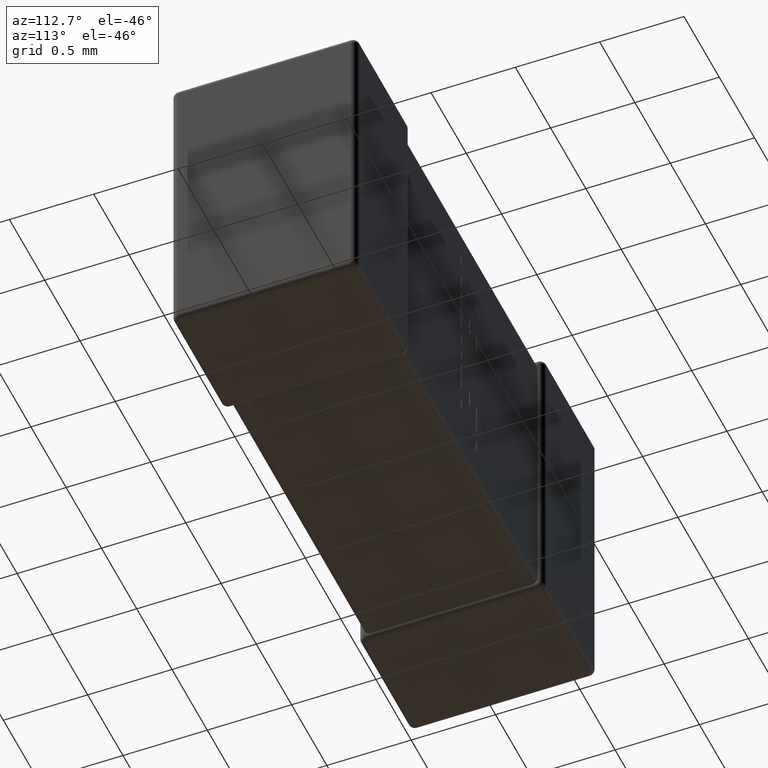
[diagram: clean part render]
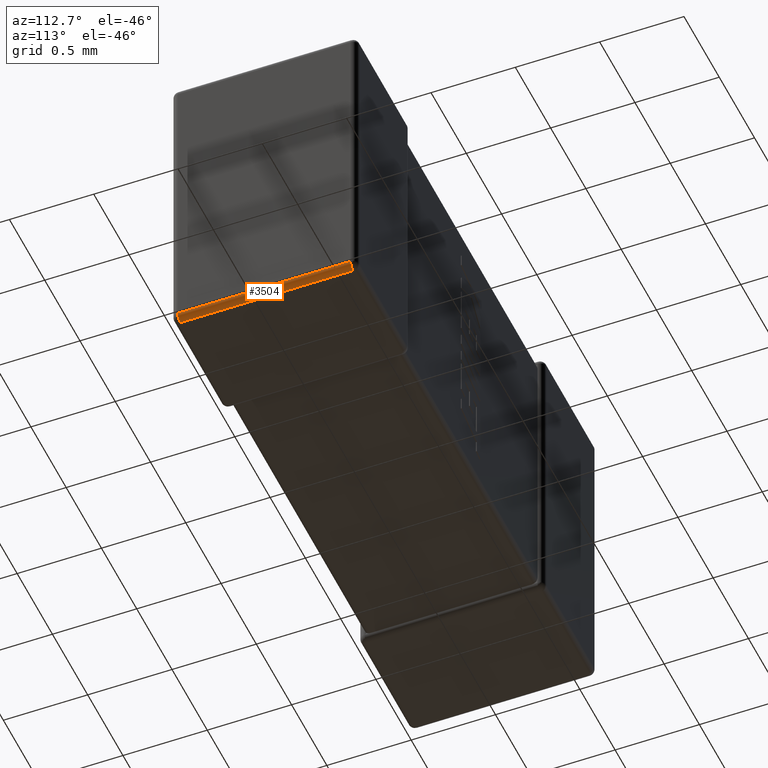
[diagram: same view with one face highlighted and labeled with its STEP entity id]
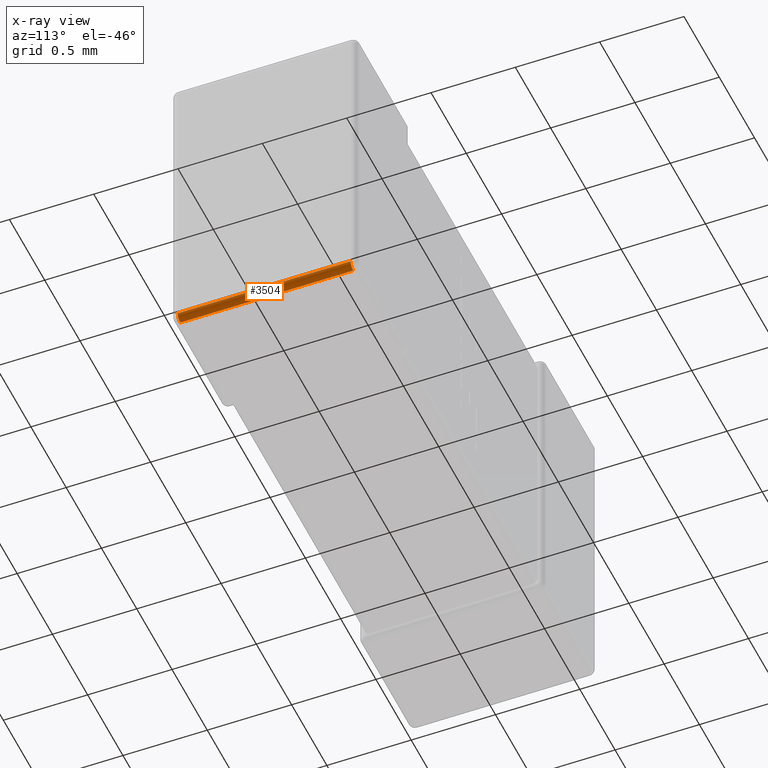
[diagram: x-ray of the same camera — body ghosted, the highlighted face saturated]
A machine part, auxiliary view. The second image highlights one B-rep face of the part: STEP entity #3504.
The next image is the same camera in x-ray: the body ghosted, the highlighted face saturated — about 0% of this face is hidden behind the body in this view.
In plain terms, the highlighted cylindrical surface (edge-blend (fillet) strip) has radius 0.0374 mm, axis along (0, 1, -0).
Its self-contained STEP definition (entity closure, byte-faithful):
#41 = CIRCLE ( 'NONE', #3585, 0.03743999999999991085 ) ;
#455 = EDGE_CURVE ( 'NONE', #1603, #722, #1959, .T. ) ;
#588 = EDGE_CURVE ( 'NONE', #1816, #722, #4529, .T. ) ;
#705 = DIRECTION ( 'NONE',  ( 0.000000000000000000, -1.000000000000000000, 0.000000000000000000 ) ) ;
#722 = VERTEX_POINT ( 'NONE', #1211 ) ;
#793 = FACE_OUTER_BOUND ( 'NONE', #3779, .T. ) ;
#844 = VECTOR ( 'NONE', #4337, 1000.000000000000000 ) ;
#909 = VECTOR ( 'NONE', #3346, 1000.000000000000000 ) ;
#1009 = EDGE_CURVE ( 'NONE', #1816, #1533, #2437, .T. ) ;
#1121 = CARTESIAN_POINT ( 'NONE',  ( 3.400000000000000355, 0.03744000000000000106, -1.762560000000000127 ) ) ;
#1140 = DIRECTION ( 'NONE',  ( 0.000000000000000000, 0.000000000000000000, -1.000000000000000000 ) ) ;
#1211 = CARTESIAN_POINT ( 'NONE',  ( 3.400000000000000355, 1.062560000000000171, -1.762560000000000127 ) ) ;
#1289 = AXIS2_PLACEMENT_3D ( 'NONE', #2907, #1508, #4394 ) ;
#1422 = CARTESIAN_POINT ( 'NONE',  ( 3.362560000000000215, 0.03744000000000000106, -1.762560000000000127 ) ) ;
#1508 = DIRECTION ( 'NONE',  ( 0.000000000000000000, 1.000000000000000000, -0.000000000000000000 ) ) ;
#1533 = VERTEX_POINT ( 'NONE', #3631 ) ;
#1540 = CARTESIAN_POINT ( 'NONE',  ( 3.400000000000000355, 0.000000000000000000, -1.762560000000000127 ) ) ;
#1541 = ORIENTED_EDGE ( 'NONE', *, *, #1009, .F. ) ;
#1577 = EDGE_CURVE ( 'NONE', #1533, #1603, #41, .T. ) ;
#1603 = VERTEX_POINT ( 'NONE', #1121 ) ;
#1682 = ORIENTED_EDGE ( 'NONE', *, *, #1577, .F. ) ;
#1756 = CARTESIAN_POINT ( 'NONE',  ( 3.362560000000000215, 0.000000000000000000, -1.800000000000000044 ) ) ;
#1816 = VERTEX_POINT ( 'NONE', #4101 ) ;
#1868 = ORIENTED_EDGE ( 'NONE', *, *, #455, .F. ) ;
#1959 = LINE ( 'NONE', #1540, #909 ) ;
#2372 = ORIENTED_EDGE ( 'NONE', *, *, #588, .T. ) ;
#2437 = LINE ( 'NONE', #1756, #844 ) ;
#2482 = AXIS2_PLACEMENT_3D ( 'NONE', #2763, #4534, #4577 ) ;
#2627 = CYLINDRICAL_SURFACE ( 'NONE', #1289, 0.03743999999999991085 ) ;
#2763 = CARTESIAN_POINT ( 'NONE',  ( 3.362560000000000215, 1.062560000000000171, -1.762560000000000127 ) ) ;
#2907 = CARTESIAN_POINT ( 'NONE',  ( 3.362560000000000215, 0.000000000000000000, -1.762560000000000127 ) ) ;
#3346 = DIRECTION ( 'NONE',  ( 0.000000000000000000, 1.000000000000000000, -0.000000000000000000 ) ) ;
#3504 = ADVANCED_FACE ( 'NONE', ( #793 ), #2627, .T. ) ;
#3585 = AXIS2_PLACEMENT_3D ( 'NONE', #1422, #705, #1140 ) ;
#3631 = CARTESIAN_POINT ( 'NONE',  ( 3.362560000000000215, 0.03744000000000000106, -1.800000000000000044 ) ) ;
#3779 = EDGE_LOOP ( 'NONE', ( #2372, #1868, #1682, #1541 ) ) ;
#4101 = CARTESIAN_POINT ( 'NONE',  ( 3.362560000000000215, 1.062560000000000171, -1.800000000000000044 ) ) ;
#4337 = DIRECTION ( 'NONE',  ( -0.000000000000000000, -1.000000000000000000, 0.000000000000000000 ) ) ;
#4394 = DIRECTION ( 'NONE',  ( 0.000000000000000000, 0.000000000000000000, 1.000000000000000000 ) ) ;
#4529 = CIRCLE ( 'NONE', #2482, 0.03743999999999991085 ) ;
#4534 = DIRECTION ( 'NONE',  ( 0.000000000000000000, -1.000000000000000000, -0.000000000000000000 ) ) ;
#4577 = DIRECTION ( 'NONE',  ( 0.000000000000000000, 0.000000000000000000, 1.000000000000000000 ) ) ;